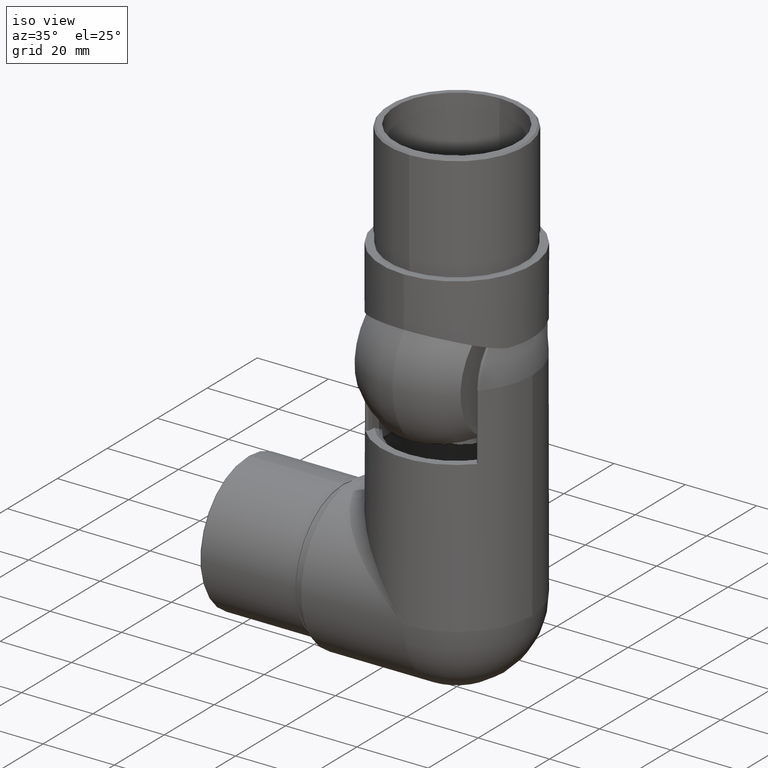
[diagram: clean part render]
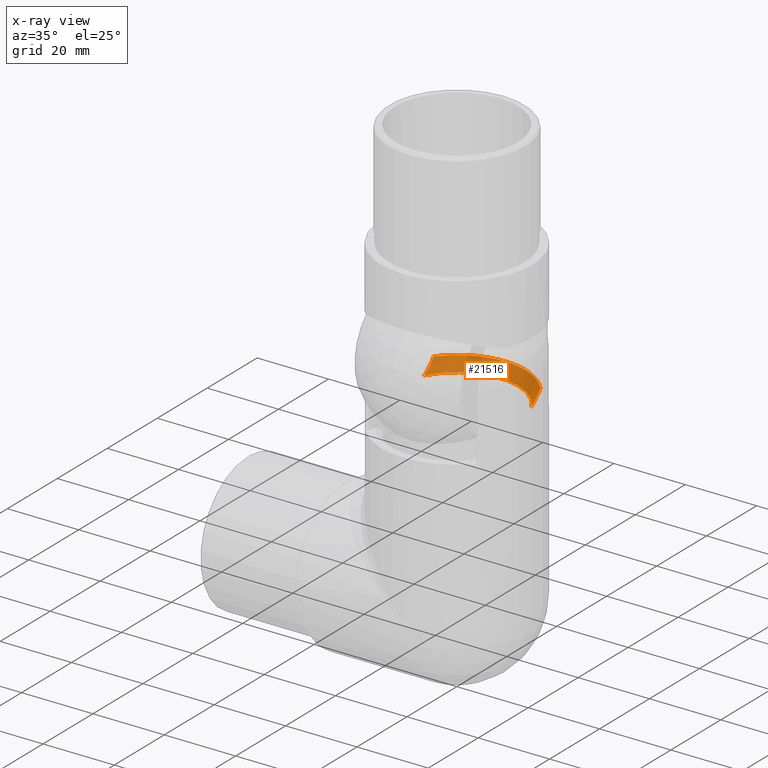
[diagram: x-ray — body ghosted, one internal face saturated and labeled with its STEP entity id]
A machine part, iso view, then the same camera in x-ray: the body is ghosted and one INTERNAL B-rep face — a face not visible from any outside direction — is saturated and labeled: STEP entity #21516.
In plain terms, the highlighted spherical surface has radius 21.5114 mm.
Its self-contained STEP definition (entity closure, byte-faithful):
#30 = EDGE_CURVE ( 'NONE', #15668, #3053, #14136, .T. ) ;
#224 = CARTESIAN_POINT ( 'NONE',  ( 15.00000000000000000, 8.151073548925936052, 47.71183740932288231 ) ) ;
#1622 = CIRCLE ( 'NONE', #19810, 19.29999999999999361 ) ;
#1896 = CARTESIAN_POINT ( 'NONE',  ( 0.000000000000000000, 0.000000000000000000, 51.29999999999999716 ) ) ;
#2071 = B_SPLINE_CURVE_WITH_KNOTS ( 'NONE', 3,
 ( #9357, #21358, #14467, #4268 ),
 .UNSPECIFIED., .F., .F.,
 ( 4, 4 ),
 ( 0.000000000000000000, 0.0005564625709643442443 ),
 .UNSPECIFIED. ) ;
#2506 = VERTEX_POINT ( 'NONE', #20117 ) ;
#2799 = CIRCLE ( 'NONE', #19301, 15.41881966948184690 ) ;
#2946 = EDGE_CURVE ( 'NONE', #20149, #3053, #15301, .T. ) ;
#3053 = VERTEX_POINT ( 'NONE', #16577 ) ;
#3085 = VERTEX_POINT ( 'NONE', #224 ) ;
#3172 = CARTESIAN_POINT ( 'NONE',  ( 0.000000000000000000, 0.000000000000000000, 60.80000000000000426 ) ) ;
#3379 = DIRECTION ( 'NONE',  ( -0.000000000000000000, -0.000000000000000000, 1.000000000000000000 ) ) ;
#3417 = DIRECTION ( 'NONE',  ( -0.000000000000000000, -0.000000000000000000, 1.000000000000000000 ) ) ;
#3581 = DIRECTION ( 'NONE',  ( 1.000000000000000000, 0.000000000000000000, 0.000000000000000000 ) ) ;
#4099 = DIRECTION ( 'NONE',  ( 1.000000000000000000, 1.239088197126290817E-16, 0.000000000000000000 ) ) ;
#4268 = CARTESIAN_POINT ( 'NONE',  ( 15.00000000000000000, 8.151073548925936052, 47.71183740932288231 ) ) ;
#4927 = EDGE_LOOP ( 'NONE', ( #13037, #9294, #20527, #5877, #13547, #7182 ) ) ;
#5120 = AXIS2_PLACEMENT_3D ( 'NONE', #3172, #15204, #11643 ) ;
#5877 = ORIENTED_EDGE ( 'NONE', *, *, #17477, .T. ) ;
#6040 = CARTESIAN_POINT ( 'NONE',  ( -14.99052652220970394, 8.314606987019397266, 47.80383828655936895 ) ) ;
#6364 = CARTESIAN_POINT ( 'NONE',  ( -15.00000000000000000, 8.151073548925936052, 47.71183740932288231 ) ) ;
#6998 = DIRECTION ( 'NONE',  ( 1.000000000000000000, 0.000000000000000000, 0.000000000000000000 ) ) ;
#7117 = CARTESIAN_POINT ( 'NONE',  ( 14.86419753086419249, 8.654226237131238619, 47.88102171222506342 ) ) ;
#7182 = ORIENTED_EDGE ( 'NONE', *, *, #21130, .T. ) ;
#7658 = CARTESIAN_POINT ( 'NONE',  ( -14.86419753086419249, 8.654226237131238619, 47.88102171222506342 ) ) ;
#8144 = CIRCLE ( 'NONE', #14245, 15.41881966948184690 ) ;
#8313 = DIRECTION ( 'NONE',  ( -1.125068917830532527E-16, -1.000000000000000000, 0.000000000000000000 ) ) ;
#8567 = CARTESIAN_POINT ( 'NONE',  ( 0.000000000000000000, 0.000000000000000000, 47.88102171222506342 ) ) ;
#9061 = EDGE_CURVE ( 'NONE', #2506, #3085, #8144, .T. ) ;
#9294 = ORIENTED_EDGE ( 'NONE', *, *, #30, .T. ) ;
#9357 = CARTESIAN_POINT ( 'NONE',  ( 14.86419753086419249, 8.654226237131238619, 47.88102171222506342 ) ) ;
#9681 = CARTESIAN_POINT ( 'NONE',  ( -14.99999999999999822, 12.14454610102822762, 51.29999999999999716 ) ) ;
#11146 = EDGE_CURVE ( 'NONE', #15668, #11666, #2799, .T. ) ;
#11643 = DIRECTION ( 'NONE',  ( 1.000000000000000000, -3.491481338843133750E-15, 0.000000000000000000 ) ) ;
#11666 = VERTEX_POINT ( 'NONE', #9681 ) ;
#12725 = CARTESIAN_POINT ( 'NONE',  ( -14.91177143076568790, 8.572514963809622301, 47.88102171222507053 ) ) ;
#13037 = ORIENTED_EDGE ( 'NONE', *, *, #11146, .F. ) ;
#13544 = DIRECTION ( 'NONE',  ( -1.000000000000000000, 1.239088197126290817E-16, 0.000000000000000000 ) ) ;
#13547 = ORIENTED_EDGE ( 'NONE', *, *, #9061, .F. ) ;
#14136 = B_SPLINE_CURVE_WITH_KNOTS ( 'NONE', 3,
 ( #16492, #21274, #6040, #21352, #12725, #7658 ),
 .UNSPECIFIED., .F., .F.,
 ( 4, 2, 4 ),
 ( 0.000000000000000000, 0.0002797258690431346918, 0.0005594517380862693836 ),
 .UNSPECIFIED. ) ;
#14245 = AXIS2_PLACEMENT_3D ( 'NONE', #18561, #13544, #8313 ) ;
#14281 = CARTESIAN_POINT ( 'NONE',  ( -14.99999999999999467, -1.858632295689435215E-15, 60.80000000000000426 ) ) ;
#14467 = CARTESIAN_POINT ( 'NONE',  ( 14.99999999999999645, 8.310968841977997457, 47.81141733773259972 ) ) ;
#15204 = DIRECTION ( 'NONE',  ( 3.491481338843133750E-15, 1.000000000000000000, 0.000000000000000000 ) ) ;
#15250 = AXIS2_PLACEMENT_3D ( 'NONE', #8567, #3379, #3581 ) ;
#15301 = CIRCLE ( 'NONE', #15250, 17.19999999999999574 ) ;
#15668 = VERTEX_POINT ( 'NONE', #6364 ) ;
#15772 = FACE_OUTER_BOUND ( 'NONE', #4927, .T. ) ;
#16041 = DIRECTION ( 'NONE',  ( -1.125068917830532527E-16, 1.000000000000000000, 0.000000000000000000 ) ) ;
#16492 = CARTESIAN_POINT ( 'NONE',  ( -15.00000000000000000, 8.151073548925936052, 47.71183740932288231 ) ) ;
#16577 = CARTESIAN_POINT ( 'NONE',  ( -14.86419753086419249, 8.654226237131238619, 47.88102171222506342 ) ) ;
#17477 = EDGE_CURVE ( 'NONE', #20149, #3085, #2071, .T. ) ;
#18561 = CARTESIAN_POINT ( 'NONE',  ( 14.99999999999999467, -1.858632295689435215E-15, 60.80000000000000426 ) ) ;
#19301 = AXIS2_PLACEMENT_3D ( 'NONE', #14281, #4099, #16041 ) ;
#19810 = AXIS2_PLACEMENT_3D ( 'NONE', #1896, #3417, #6998 ) ;
#20117 = CARTESIAN_POINT ( 'NONE',  ( 14.99999999999999822, 12.14454610102822762, 51.29999999999999716 ) ) ;
#20149 = VERTEX_POINT ( 'NONE', #7117 ) ;
#20527 = ORIENTED_EDGE ( 'NONE', *, *, #2946, .F. ) ;
#21126 = SPHERICAL_SURFACE ( 'NONE', #5120, 21.51139233057683953 ) ;
#21130 = EDGE_CURVE ( 'NONE', #2506, #11666, #1622, .T. ) ;
#21274 = CARTESIAN_POINT ( 'NONE',  ( -15.00000000000000000, 8.230965481690775576, 47.76159267599384606 ) ) ;
#21352 = CARTESIAN_POINT ( 'NONE',  ( -14.94620894494063990, 8.486594947781261666, 47.86410658632213710 ) ) ;
#21358 = CARTESIAN_POINT ( 'NONE',  ( 14.95936310900378885, 8.490773155036322350, 47.88102171222506342 ) ) ;
#21516 = ADVANCED_FACE ( 'NONE', ( #15772 ), #21126, .F. ) ;